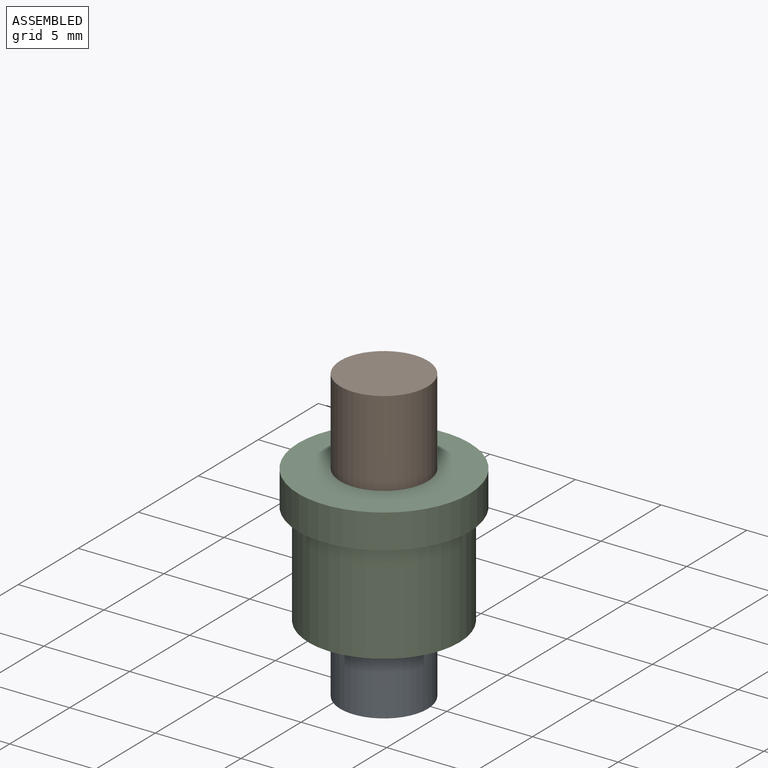
[diagram: assembled view]
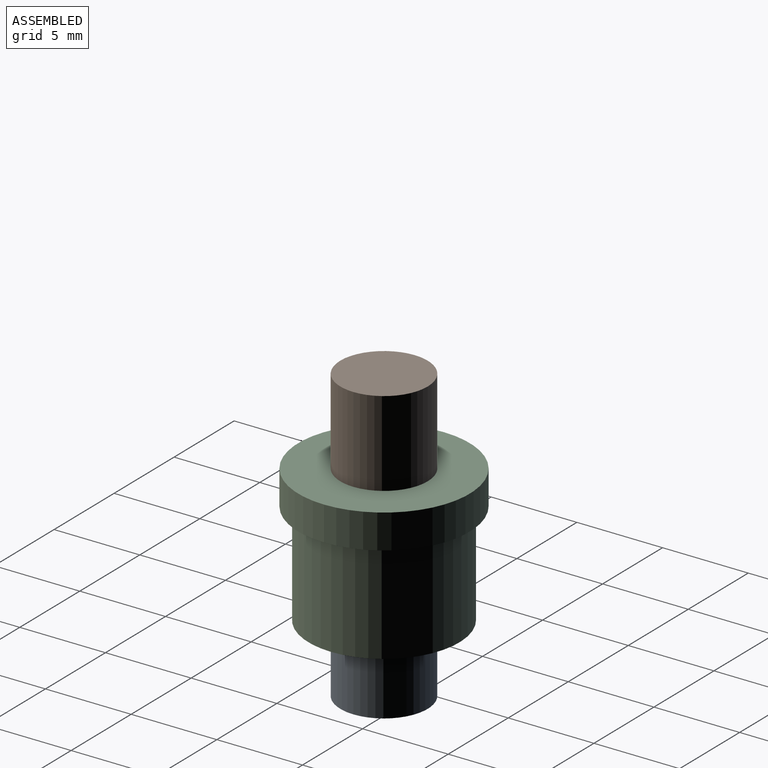
[diagram: assembled view, second angle]
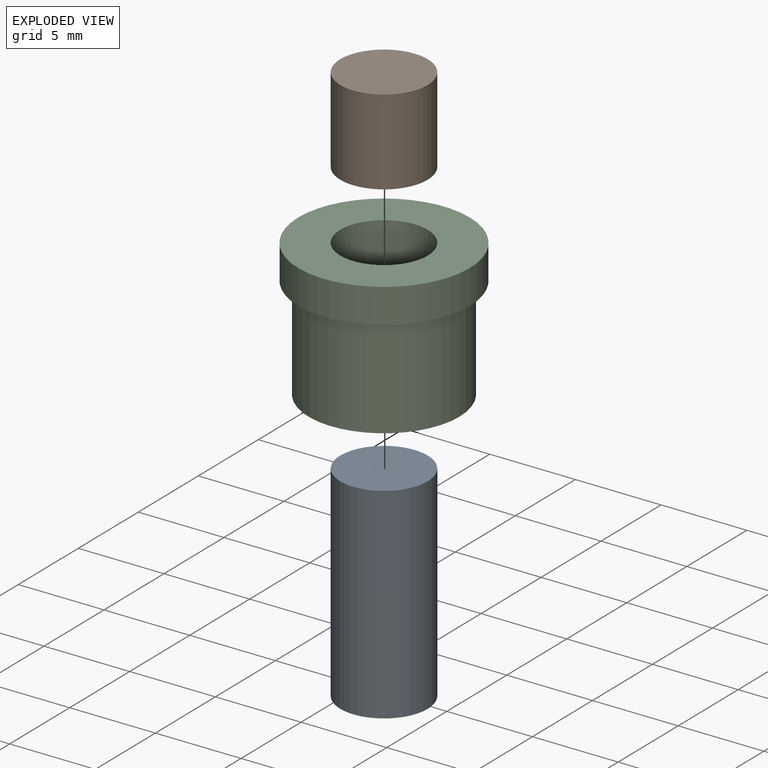
[diagram: exploded view]
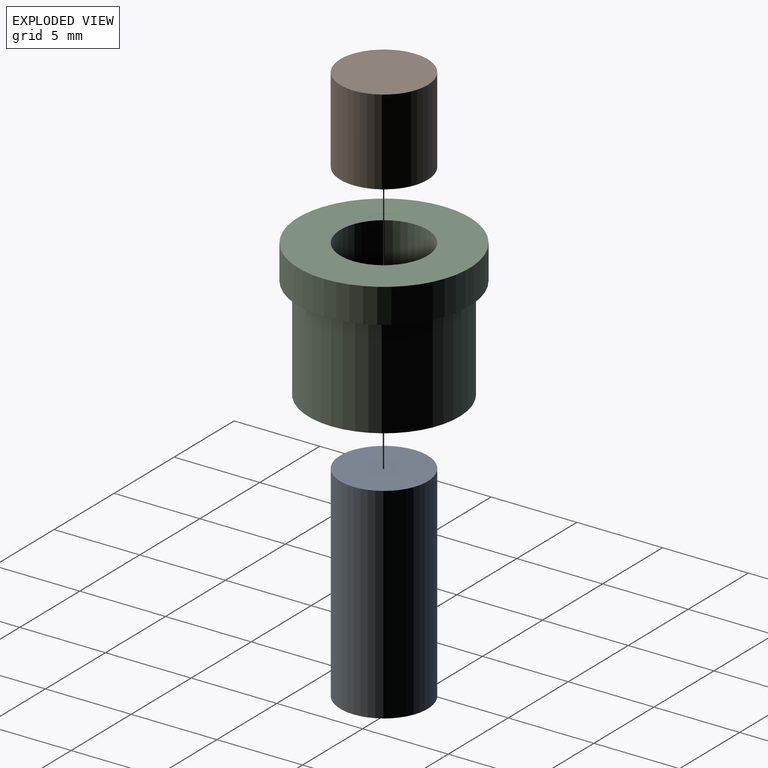
[diagram: exploded view, second angle]
ASSEMBLY  parts=3 mates=2
PART A: 3 faces, bbox 5.1x5.1x12 mm
  f0: cylinder r=2.55mm len=12mm, axis (0,0,1), area 192.3mm2, adj f1,f2
  f1: plane 5.1x5.1mm, normal (0,0,-1), area 20.4mm2, adj f0
  f2: plane 5.1x5.1mm, normal (0,0,1), area 20.4mm2, adj f0
PART B: 3 faces, bbox 5.1x5.1x5 mm
  f0: cylinder r=2.55mm len=5.1mm, axis (0,0,-1), area 80.1mm2, adj f1,f2
  f1: plane 5.1x5.1mm, normal (0,0,1), area 20.4mm2, adj f0
  f2: plane 5.1x5.1mm, normal (0,0,-1), area 20.4mm2, adj f0
PART C: 6 faces, bbox 10x10x8 mm
  f0: cylinder r=5mm len=10mm, axis (0,0,1), area 62.8mm2, adj f1,f2
  f1: plane 10x10mm, normal (0,0,-1), area 17.7mm2, adj f0,f3
  f2: plane 10x10mm, normal (0,0,1), area 58.1mm2, adj f0,f4
  f3: cylinder r=4.4mm len=8.8mm, axis (0,0,1), area 165.9mm2, adj f1,f5
  f4: cylinder r=2.55mm len=8mm, axis (0,0,1), area 128.2mm2, adj f2,f5
  f5: plane 8.8x8.8mm, normal (0,0,-1), area 40.4mm2, adj f3,f4
PLACE A t=(-3.05,-5.88,0.23)mm
PLACE B t=(-3.05,-5.88,0.23)mm
PLACE C t=(-3.05,-5.88,0.23)mm
MATE fastened A.f0 <-> C.f4  axis (0,0,1) through (-3.05,-5.88,0.23)mm
MATE fastened B.f0 <-> A.f0  axis (0,0,-1) through (-3.05,-5.88,0.23)mm
